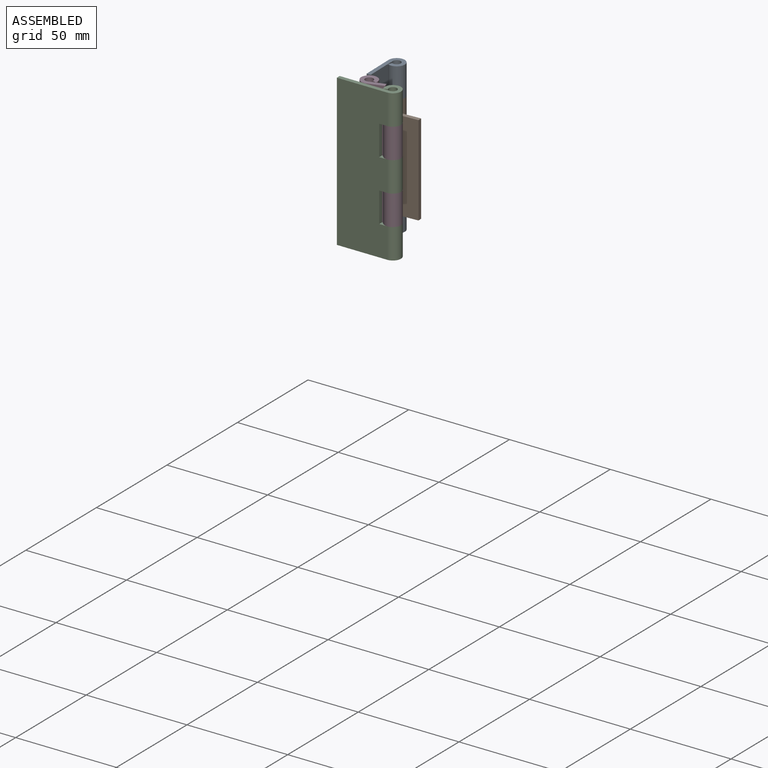
[diagram: assembled view]
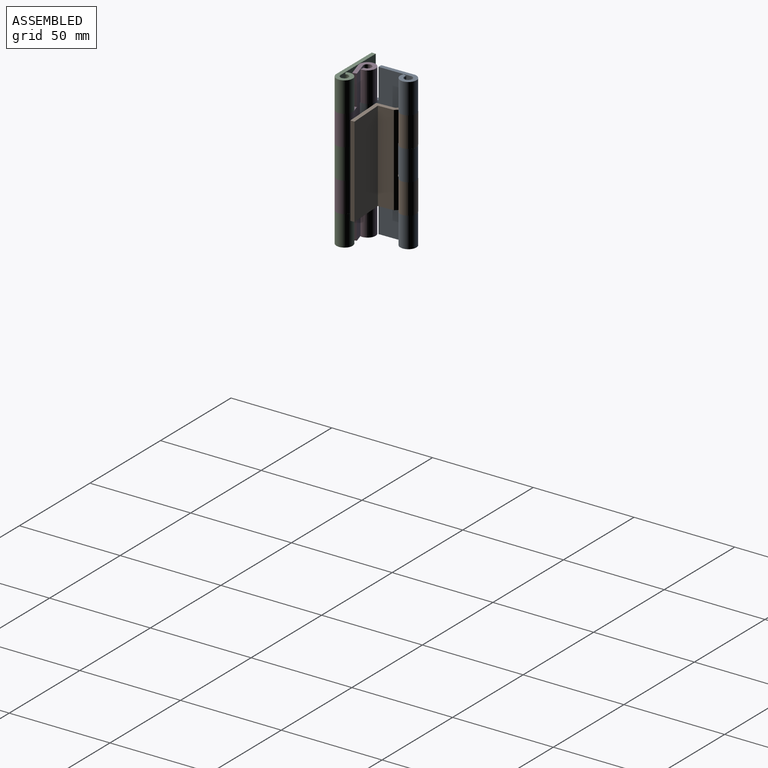
[diagram: assembled view, second angle]
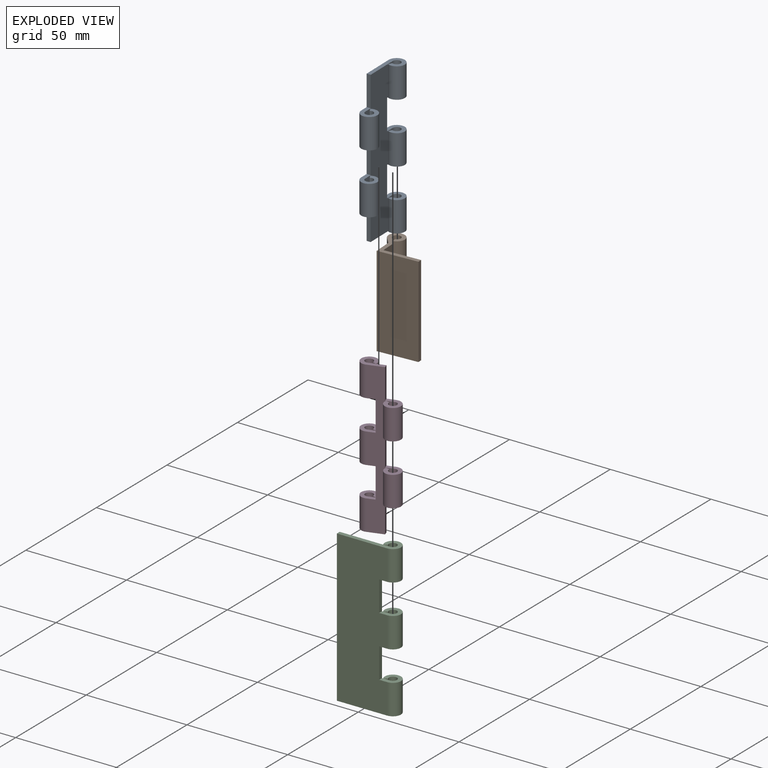
[diagram: exploded view]
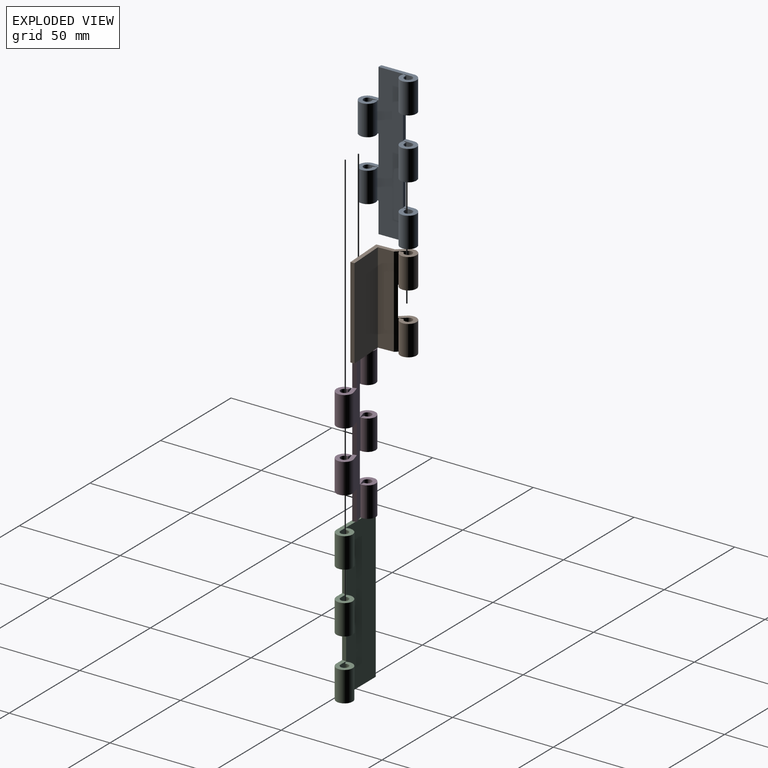
[diagram: exploded view, second angle]
ASSEMBLY  parts=4 mates=6
PART A: 32 faces, bbox 28x8x75 mm
  f0: plane 75x20mm, normal (0,-1,0), area 1200mm2, adj f6,f7,f13,f14,f15,f16,f18,f19
  f1: plane 75x20mm, normal (0,1,0), area 1200mm2, adj f2,f3,f10,f11,f12,f15,f16,f19
  f2: cylinder r=4mm len=15mm, axis (0,0,1), area 312.6mm2, adj f1,f4,f29,f31
  f3: cylinder r=4mm len=15mm, axis (0,0,1), area 312.6mm2, adj f1,f5,f26,f28
  f4: plane 15x1.76mm, normal (-0.48,0.88,0), area 30mm2, adj f2,f6,f29,f31
  f5: plane 15x1.76mm, normal (-0.48,0.88,0), area 30mm2, adj f3,f7,f26,f28
  f6: cylinder r=2mm len=15mm, axis (0,0,1), area 156.3mm2, adj f0,f4,f29,f31
  f7: cylinder r=2mm len=15mm, axis (0,0,1), area 156.3mm2, adj f0,f5,f26,f28
  f8: plane 15x1.76mm, normal (0.47,0.88,0), area 30mm2, adj f10,f13,f16,f23
  f9: plane 15x1.76mm, normal (0.47,0.88,0), area 30mm2, adj f11,f14,f20,f24
  f10: cylinder r=4mm len=15mm, axis (0,0,1), area 312.4mm2, adj f1,f8,f16,f23
  f11: cylinder r=4mm len=15mm, axis (0,0,1), area 312.4mm2, adj f1,f9,f20,f24
  f12: cylinder r=4mm len=15mm, axis (0,0,1), area 312.4mm2, adj f1,f15,f17,f21
  f13: cylinder r=2mm len=15mm, axis (0,0,1), area 156.2mm2, adj f0,f8,f16,f23
  f14: cylinder r=2mm len=15mm, axis (0,0,1), area 156.2mm2, adj f0,f9,f20,f24
  f15: plane 20x8mm, normal (0,0,1), area 63.2mm2, adj f0,f1,f12,f17,f18,f25
  f16: plane 20x8mm, normal (0,0,-1), area 63.2mm2, adj f0,f1,f8,f10,f13,f30
  f17: plane 15x1.76mm, normal (0.47,0.88,0), area 30mm2, adj f12,f15,f18,f21
  f18: cylinder r=2mm len=15mm, axis (0,0,1), area 156.2mm2, adj f0,f15,f17,f21
  f19: plane 15x2mm, normal (1,0,0), area 30mm2, adj f0,f1,f20,f21
  f20: plane 8x8mm, normal (0,0,1), area 39.2mm2, adj f0,f1,f9,f11,f14,f19
  f21: plane 8x8mm, normal (0,0,-1), area 39.2mm2, adj f0,f1,f12,f17,f18,f19
  f22: plane 15x2mm, normal (1,0,0), area 30mm2, adj f0,f1,f23,f24
  f23: plane 8x8mm, normal (0,0,1), area 39.2mm2, adj f0,f1,f8,f10,f13,f22
  f24: plane 8x8mm, normal (0,0,-1), area 39.2mm2, adj f0,f1,f9,f11,f14,f22
  f25: plane 15x2mm, normal (-1,0,0), area 30mm2, adj f0,f1,f15,f26
  f26: plane 8x8mm, normal (0,0,1), area 39.3mm2, adj f0,f1,f3,f5,f7,f25
  f27: plane 15x2mm, normal (-1,0,0), area 30mm2, adj f0,f1,f28,f29
  f28: plane 8x8mm, normal (0,0,-1), area 39.3mm2, adj f0,f1,f3,f5,f7,f27
  f29: plane 8x8mm, normal (0,0,1), area 39.3mm2, adj f0,f1,f2,f4,f6,f27
  f30: plane 15x2mm, normal (-1,0,0), area 30mm2, adj f0,f1,f16,f31
  f31: plane 8x8mm, normal (0,0,-1), area 39.3mm2, adj f0,f1,f2,f4,f6,f30
PART B: 18 faces, bbox 28.4x17x45 mm
  f0: plane 45x5.69mm, normal (0,-1,0), area 196mm2, adj f1,f2,f7,f9,f10,f11,f12,f14
  f1: plane 28.41x16.99mm, normal (0,0,1), area 96.6mm2, adj f0,f3,f4,f5,f7,f13,f14,f15
  f2: plane 28.41x16.99mm, normal (0,0,-1), area 96.6mm2, adj f0,f3,f6,f8,f9,f13,f14,f15
  f3: plane 45x5mm, normal (0,1,0), area 165mm2, adj f1,f2,f5,f6,f10,f11,f12,f15
  f4: plane 15x1.76mm, normal (0.48,0.88,0), area 30mm2, adj f1,f5,f7,f11
  f5: cylinder r=4mm len=15mm, axis (0,0,1), area 312.6mm2, adj f1,f3,f4,f11
  f6: cylinder r=4mm len=15mm, axis (0,0,1), area 312.6mm2, adj f2,f3,f8,f12
  f7: cylinder r=2mm len=15mm, axis (0,0,1), area 156.3mm2, adj f0,f1,f4,f11
  f8: plane 15x1.76mm, normal (0.48,0.88,0), area 30mm2, adj f2,f6,f9,f12
  f9: cylinder r=2mm len=15mm, axis (0,0,1), area 156.3mm2, adj f0,f2,f8,f12
  f10: plane 15x2mm, normal (1,0,0), area 30mm2, adj f0,f3,f11,f12
  f11: plane 8x8mm, normal (0,0,-1), area 39.3mm2, adj f0,f3,f4,f5,f7,f10
  f12: plane 8x8mm, normal (0,0,1), area 39.3mm2, adj f0,f3,f6,f8,f9,f10
  f13: plane 45x14.18mm, normal (0.79,-0.62,0), area 810mm2, adj f1,f2,f14,f17
  f14: plane 45x6.06mm, normal (-0.62,-0.79,0), area 346mm2, adj f0,f1,f2,f13
  f15: plane 45x7.09mm, normal (0.62,0.79,0), area 405mm2, adj f1,f2,f3,f16
  f16: plane 45x15.76mm, normal (-0.79,0.62,0), area 900mm2, adj f1,f2,f15,f17
  f17: plane 45x1.58mm, normal (-0.62,-0.79,0), area 90mm2, adj f1,f2,f13,f16
PART C: 20 faces, bbox 29x8x75 mm
  f0: plane 75x25mm, normal (0,-1,0), area 1755mm2, adj f2,f3,f4,f9,f10,f11,f14,f15
  f1: plane 75x25mm, normal (0,1,0), area 1755mm2, adj f7,f8,f9,f10,f11,f13,f14,f15
  f2: cylinder r=4mm len=15mm, axis (0,0,1), area 311.9mm2, adj f0,f5,f9,f19
  f3: cylinder r=4mm len=15mm, axis (0,0,1), area 311.9mm2, adj f0,f6,f15,f18
  f4: cylinder r=4mm len=15mm, axis (0,0,1), area 311.9mm2, adj f0,f11,f12,f16
  f5: plane 15x1.77mm, normal (0.47,-0.88,0), area 30mm2, adj f2,f7,f9,f19
  f6: plane 15x1.77mm, normal (0.47,-0.88,0), area 30mm2, adj f3,f8,f15,f18
  f7: cylinder r=2mm len=15mm, axis (0,0,1), area 155.9mm2, adj f1,f5,f9,f19
  f8: cylinder r=2mm len=15mm, axis (0,0,1), area 155.9mm2, adj f1,f6,f15,f18
  f9: plane 29x8mm, normal (0,0,1), area 81.2mm2, adj f0,f1,f2,f5,f7,f10
  f10: plane 75x2mm, normal (-1,0,0), area 150mm2, adj f0,f1,f9,f11
  f11: plane 29x8mm, normal (0,0,-1), area 81.2mm2, adj f0,f1,f4,f10,f12,f13
  f12: plane 15x1.77mm, normal (0.47,-0.88,0), area 30mm2, adj f4,f11,f13,f16
  f13: cylinder r=2mm len=15mm, axis (0,0,1), area 155.9mm2, adj f1,f11,f12,f16
  f14: plane 15x2mm, normal (1,0,0), area 30mm2, adj f0,f1,f15,f16
  f15: plane 8x8mm, normal (0,0,-1), area 39.2mm2, adj f0,f1,f3,f6,f8,f14
  f16: plane 8x8mm, normal (0,0,1), area 39.2mm2, adj f0,f1,f4,f12,f13,f14
  f17: plane 15x2mm, normal (1,0,0), area 30mm2, adj f0,f1,f18,f19
  f18: plane 8x8mm, normal (0,0,1), area 39.2mm2, adj f0,f1,f3,f6,f8,f17
  f19: plane 8x8mm, normal (0,0,-1), area 39.2mm2, adj f0,f1,f2,f5,f7,f17
PART D: 32 faces, bbox 20x14x75 mm
  f0: plane 75x12mm, normal (0,-1,0), area 600mm2, adj f2,f3,f12,f13,f14,f15,f16,f19
  f1: plane 75x12mm, normal (0,1,0), area 600mm2, adj f6,f7,f8,f9,f14,f15,f18,f19
  f2: cylinder r=4mm len=15mm, axis (0,0,1), area 312.4mm2, adj f0,f4,f27,f31
  f3: cylinder r=4mm len=15mm, axis (0,0,1), area 312.4mm2, adj f0,f5,f14,f28
  f4: plane 15x1.76mm, normal (0.47,-0.88,0), area 30mm2, adj f2,f6,f27,f31
  f5: plane 15x1.76mm, normal (0.47,-0.88,0), area 30mm2, adj f3,f7,f14,f28
  f6: cylinder r=2mm len=15mm, axis (0,0,1), area 156.2mm2, adj f1,f4,f27,f31
  f7: cylinder r=2mm len=15mm, axis (0,0,1), area 156.2mm2, adj f1,f5,f14,f28
  f8: cylinder r=4mm len=15mm, axis (0,0,1), area 312mm2, adj f1,f10,f22,f25
  f9: cylinder r=4mm len=15mm, axis (0,0,1), area 312mm2, adj f1,f11,f20,f23
  f10: plane 15x1.77mm, normal (-0.47,0.88,0), area 30mm2, adj f8,f12,f22,f25
  f11: plane 15x1.77mm, normal (-0.47,0.88,0), area 30mm2, adj f9,f13,f20,f23
  f12: cylinder r=2mm len=15mm, axis (0,0,1), area 156mm2, adj f0,f10,f22,f25
  f13: cylinder r=2mm len=15mm, axis (0,0,1), area 156mm2, adj f0,f11,f20,f23
  f14: plane 12x8mm, normal (0,0,1), area 47.2mm2, adj f0,f1,f3,f5,f7,f24
  f15: plane 12x8mm, normal (0,0,-1), area 47.2mm2, adj f0,f1,f16,f17,f18,f19
  f16: cylinder r=4mm len=15mm, axis (0,0,1), area 312.4mm2, adj f0,f15,f17,f30
  f17: plane 15x1.76mm, normal (0.47,-0.88,0), area 30mm2, adj f15,f16,f18,f30
  f18: cylinder r=2mm len=15mm, axis (0,0,1), area 156.2mm2, adj f1,f15,f17,f30
  f19: plane 15x2mm, normal (-1,0,0), area 30mm2, adj f0,f1,f15,f20
  f20: plane 8x8mm, normal (0,0,-1), area 39.2mm2, adj f0,f1,f9,f11,f13,f19
  f21: plane 15x2mm, normal (-1,0,0), area 30mm2, adj f0,f1,f22,f23
  f22: plane 8x8mm, normal (0,0,-1), area 39.2mm2, adj f0,f1,f8,f10,f12,f21
  f23: plane 8x8mm, normal (0,0,1), area 39.2mm2, adj f0,f1,f9,f11,f13,f21
  f24: plane 15x2mm, normal (-1,0,0), area 30mm2, adj f0,f1,f14,f25
  f25: plane 8x8mm, normal (0,0,1), area 39.2mm2, adj f0,f1,f8,f10,f12,f24
  f26: plane 15x2mm, normal (1,0,0), area 30mm2, adj f0,f1,f27,f28
  f27: plane 8x8mm, normal (0,0,1), area 39.2mm2, adj f0,f1,f2,f4,f6,f26
  f28: plane 8x8mm, normal (0,0,-1), area 39.2mm2, adj f0,f1,f3,f5,f7,f26
  f29: plane 15x2mm, normal (1,0,0), area 30mm2, adj f0,f1,f30,f31
  f30: plane 8x8mm, normal (0,0,1), area 39.2mm2, adj f0,f1,f16,f17,f18,f29
  f31: plane 8x8mm, normal (0,0,-1), area 39.2mm2, adj f0,f1,f2,f4,f6,f29
PLACE A rot(axis=(0,0,1),91deg) t=(-4.19,17.75,-0.01)mm
PLACE B rot(axis=(0,0,1),131.2deg) t=(1.24,19.92,-0.01)mm
PLACE C t=(0.73,3.66,-0.01)mm fixed
PLACE D rot(axis=(-0.15,0.99,0),180deg) t=(6.32,7.7,-0.01)mm
MATE cylindrical B.f5 <-> A.f10  axis (0,0,1) through (-0.37,27.82,22.49)mm
MATE cylindrical D.f8 <-> C.f2  axis (0,0,1) through (13.23,5.66,22.49)mm
MATE planar D.f8 <-> C.f19  axis (0,0,-1) through (13.23,5.66,22.49)mm
MATE planar B.f1 <-> A.f21  axis (0,0,1) through (-1.87,26.51,22.49)mm
MATE planar A.f26 <-> D.f30  axis (0,0,1) through (-0.2,7.98,22.49)mm
MATE cylindrical A.f2 <-> D.f2  axis (0,0,1) through (-0.01,7.83,22.49)mm
